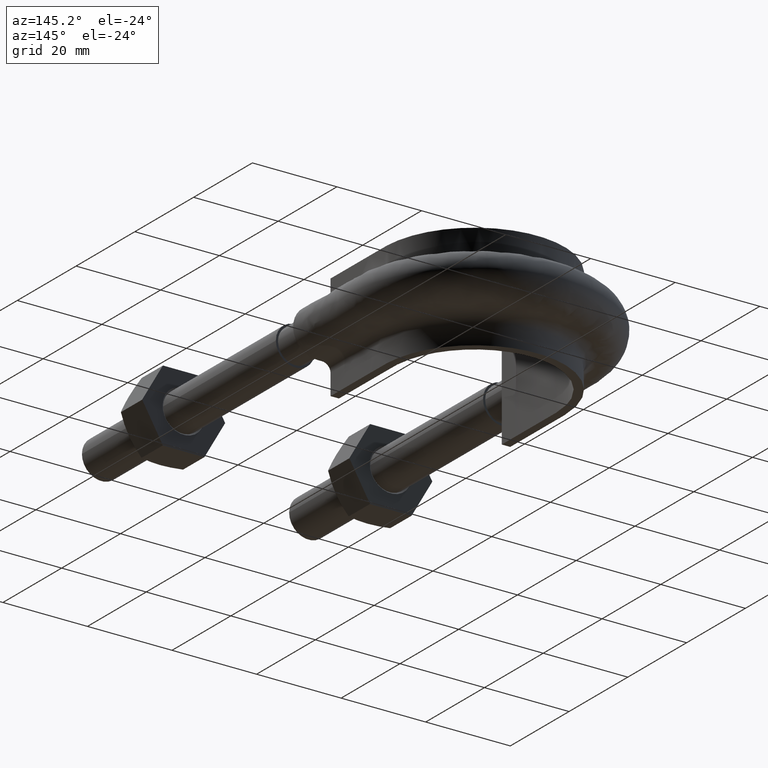
[diagram: clean part render]
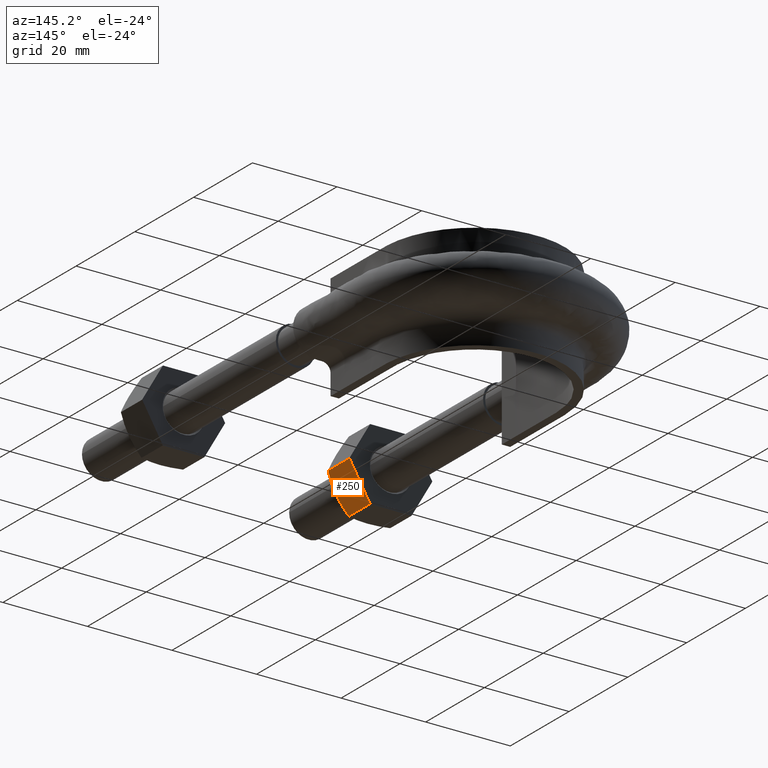
[diagram: same view with one face highlighted and labeled with its STEP entity id]
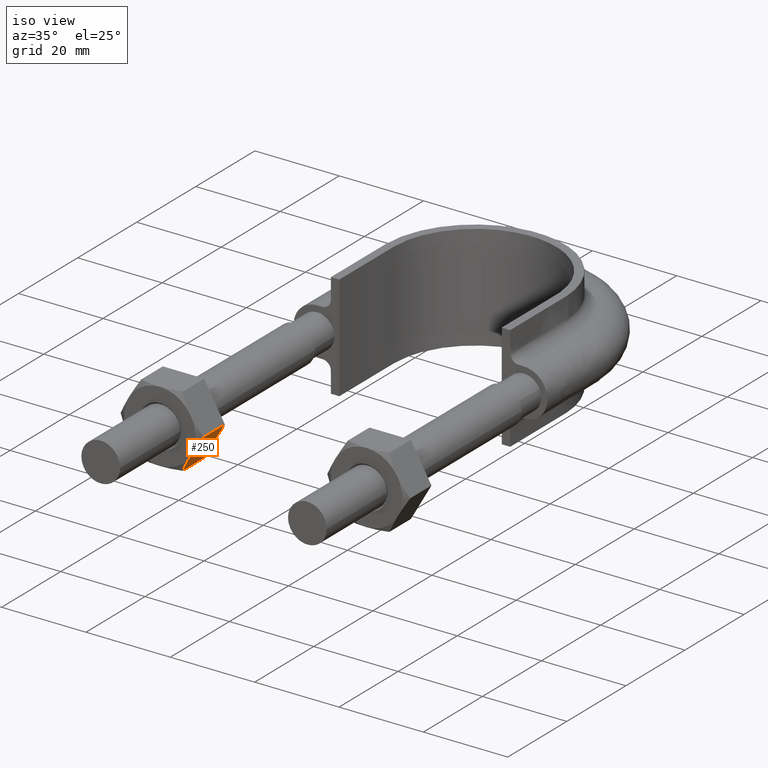
[diagram: same view with one face highlighted and labeled with its STEP entity id]
A machine part, auxiliary view. The second image highlights one B-rep face of the part: STEP entity #250.
A second angle (iso view) of the same face is appended — the face is thin or edge-on in the first view.
In plain terms, the highlighted planar face has unit normal (-0.866, 0, 0.5).
Its self-contained STEP definition (entity closure, byte-faithful):
#250 = ADVANCED_FACE( '', ( #365 ), #366, .F. );
#365 = FACE_OUTER_BOUND( '', #1208, .T. );
#366 = PLANE( '', #1209 );
#1208 = EDGE_LOOP( '', ( #1510, #1511, #1512, #1513, #1514 ) );
#1209 = AXIS2_PLACEMENT_3D( '', #1515, #1516, #1517 );
#1510 = ORIENTED_EDGE( '', *, *, #1888, .F. );
#1511 = ORIENTED_EDGE( '', *, *, #1895, .F. );
#1512 = ORIENTED_EDGE( '', *, *, #1896, .F. );
#1513 = ORIENTED_EDGE( '', *, *, #1897, .F. );
#1514 = ORIENTED_EDGE( '', *, *, #1898, .F. );
#1515 = CARTESIAN_POINT( '', ( -14.6850454237764, 28.0000000000000, 9.89822373370642E-015 ) );
#1516 = DIRECTION( '', ( -0.866025403784439, 5.90322481814055E-017, 0.500000000000000 ) );
#1517 = DIRECTION( '', ( 0.500000000000000, -3.87595688393741E-016, 0.866025403784438 ) );
#1888 = EDGE_CURVE( '', #2068, #2064, #2070, .T. );
#1895 = EDGE_CURVE( '', #2082, #2068, #2083, .T. );
#1896 = EDGE_CURVE( '', #2084, #2082, #2085, .F. );
#1897 = EDGE_CURVE( '', #2086, #2084, #2087, .T. );
#1898 = EDGE_CURVE( '', #2064, #2086, #2088, .T. );
#2064 = VERTEX_POINT( '', #2482 );
#2068 = VERTEX_POINT( '', #2491 );
#2070 = B_SPLINE_CURVE_WITH_KNOTS( '', 3, ( #2493, #2494, #2495, #2496, #2497, #2498, #2499, #2500 ), .UNSPECIFIED., .F., .F., ( 4, 2, 2, 4 ), ( 0.00493506423428099, 0.00616384870526321, 0.00739263317624543, 0.00985020211820987 ), .UNSPECIFIED. );
#2082 = VERTEX_POINT( '', #2512 );
#2083 = B_SPLINE_CURVE_WITH_KNOTS( '', 3, ( #2513, #2514, #2515, #2516, #2517, #2518 ), .UNSPECIFIED., .F., .F., ( 4, 2, 4 ), ( 4.83064900407315E-007, 0.00246777364959070, 0.00493506423428099 ), .UNSPECIFIED. );
#2084 = VERTEX_POINT( '', #2519 );
#2085 = LINE( '', #2520, #2521 );
#2086 = VERTEX_POINT( '', #2522 );
#2087 = LINE( '', #2523, #2524 );
#2088 = LINE( '', #2525, #2526 );
#2482 = CARTESIAN_POINT( '', ( -14.7000343881808, 20.7505553499465, -0.0259616479013730 ) );
#2491 = CARTESIAN_POINT( '', ( -17.1387840678323, 20.0000000000000, -4.24999999999999 ) );
#2493 = CARTESIAN_POINT( '', ( -17.1387840678323, 20.0000000000000, -4.24999999999999 ) );
#2494 = CARTESIAN_POINT( '', ( -16.9319295962256, 20.0000000000000, -3.89171754540440 ) );
#2495 = CARTESIAN_POINT( '', ( -16.7240406051186, 20.0177112081763, -3.53164325047275 ) );
#2496 = CARTESIAN_POINT( '', ( -16.3127840793211, 20.0863021936212, -2.81932605284735 ) );
#2497 = CARTESIAN_POINT( '', ( -16.1085229009408, 20.1371116504194, -2.46553531387867 ) );
#2498 = CARTESIAN_POINT( '', ( -15.4993495049988, 20.3331494013913, -1.41041604148787 ) );
#2499 = CARTESIAN_POINT( '', ( -15.0980340352877, 20.5218253127355, -0.715317258084871 ) );
#2500 = CARTESIAN_POINT( '', ( -14.7000343881808, 20.7505553499465, -0.0259616479013719 ) );
#2512 = CARTESIAN_POINT( '', ( -19.5775337474837, 20.7505553499465, -8.47403835209861 ) );
#2513 = CARTESIAN_POINT( '', ( -19.5775337474837, 20.7505553499465, -8.47403835209861 ) );
#2514 = CARTESIAN_POINT( '', ( -19.1784813832029, 20.5212203171278, -7.78285938228368 ) );
#2515 = CARTESIAN_POINT( '', ( -18.7765469149609, 20.3324525365440, -7.08668846197545 ) );
#2516 = CARTESIAN_POINT( '', ( -17.9644013765603, 20.0714148540586, -5.68001112632512 ) );
#2517 = CARTESIAN_POINT( '', ( -17.5541295594532, 20.0000000000000, -4.96939949418209 ) );
#2518 = CARTESIAN_POINT( '', ( -17.1387840678323, 20.0000000000000, -4.24999999999999 ) );
#2519 = CARTESIAN_POINT( '', ( -19.5775337474837, 28.0000000000000, -8.47403835209860 ) );
#2520 = CARTESIAN_POINT( '', ( -19.5775337474837, 28.0000000000000, -8.47403835209861 ) );
#2521 = VECTOR( '', #2915, 1000.00000000000 );
#2522 = CARTESIAN_POINT( '', ( -14.7000343881808, 28.0000000000000, -0.0259616479013734 ) );
#2523 = CARTESIAN_POINT( '', ( -14.6887840678323, 28.0000000000000, -0.00647552145624212 ) );
#2524 = VECTOR( '', #2916, 999.999999999999 );
#2525 = CARTESIAN_POINT( '', ( -14.7000343881808, 28.0000000000000, -0.0259616479013725 ) );
#2526 = VECTOR( '', #2917, 1000.00000000000 );
#2915 = DIRECTION( '', ( 2.44921270764475E-016, 1.00000000000000, 3.06151588455594E-016 ) );
#2916 = DIRECTION( '', ( -0.500000000000000, 3.87595688393741E-016, -0.866025403784438 ) );
#2917 = DIRECTION( '', ( 2.44921270764475E-016, 1.00000000000000, 3.06151588455594E-016 ) );